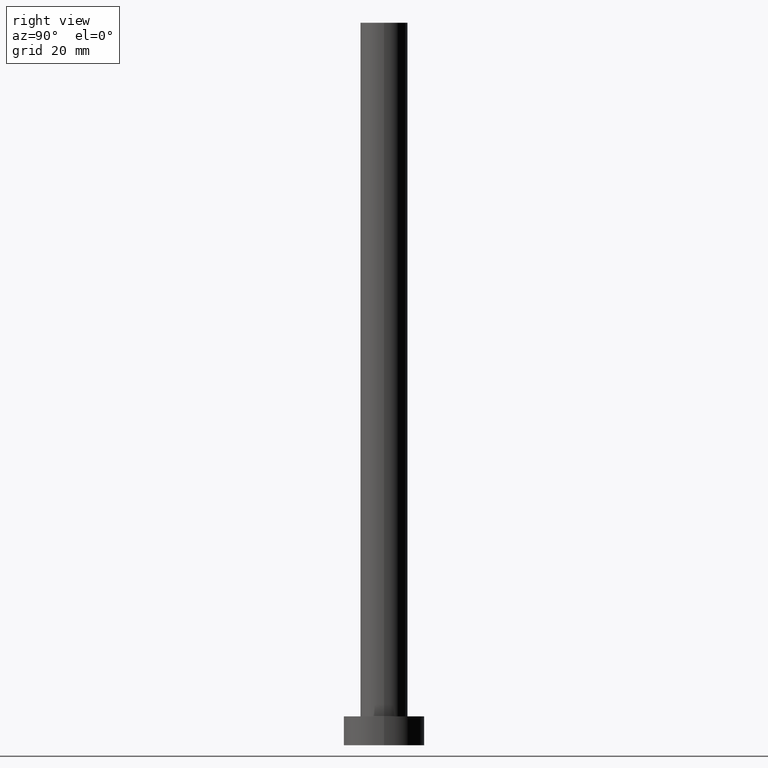
[diagram: clean part render]
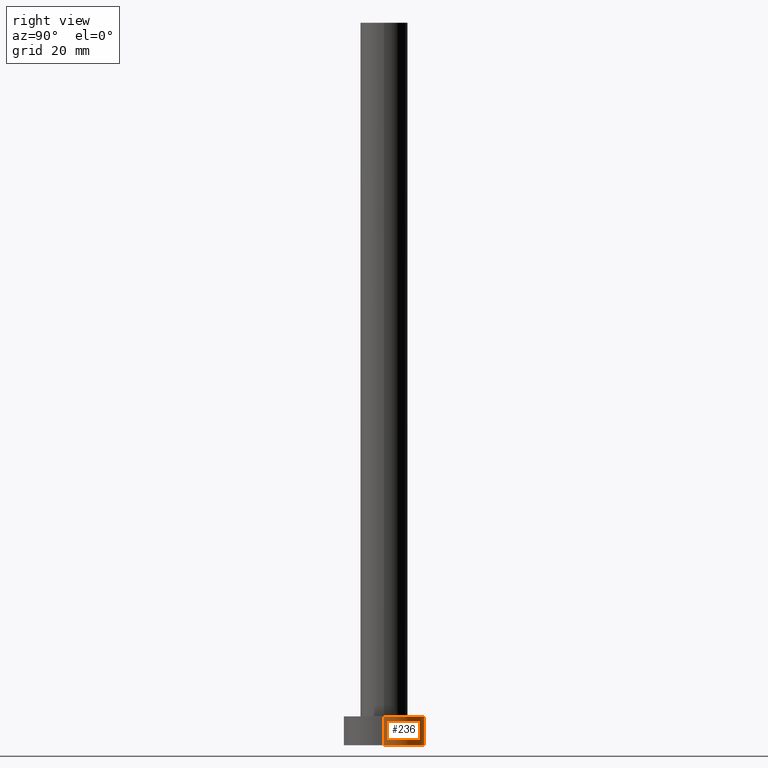
[diagram: same view with one face highlighted and labeled with its STEP entity id]
A machine part, right view. The second image highlights one B-rep face of the part: STEP entity #236.
In plain terms, the highlighted cylindrical surface (partial cylindrical patch) has radius 7 mm, axis along (-0, -0, -1).
Its self-contained STEP definition (entity closure, byte-faithful):
#8 = DIRECTION ( 'NONE',  ( 1.000000000000000000, 0.000000000000000000, 0.000000000000000000 ) ) ;
#14 = CARTESIAN_POINT ( 'NONE',  ( 0.000000000000000000, 0.000000000000000000, 5.000000000000000000 ) ) ;
#25 = CARTESIAN_POINT ( 'NONE',  ( 0.000000000000000000, 0.000000000000000000, 5.000000000000000000 ) ) ;
#27 = CARTESIAN_POINT ( 'NONE',  ( 0.000000000000000000, 0.000000000000000000, 0.000000000000000000 ) ) ;
#29 = AXIS2_PLACEMENT_3D ( 'NONE', #27, #100, #8 ) ;
#47 = EDGE_LOOP ( 'NONE', ( #241, #218, #137, #65 ) ) ;
#49 = CARTESIAN_POINT ( 'NONE',  ( 7.000000000000000000, 8.572527594031473190E-16, 0.000000000000000000 ) ) ;
#52 = EDGE_CURVE ( 'NONE', #254, #61, #120, .T. ) ;
#61 = VERTEX_POINT ( 'NONE', #160 ) ;
#65 = ORIENTED_EDGE ( 'NONE', *, *, #162, .F. ) ;
#83 = LINE ( 'NONE', #253, #163 ) ;
#100 = DIRECTION ( 'NONE',  ( 0.000000000000000000, 0.000000000000000000, 1.000000000000000000 ) ) ;
#103 = CYLINDRICAL_SURFACE ( 'NONE', #208, 7.000000000000000000 ) ;
#104 = VERTEX_POINT ( 'NONE', #204 ) ;
#110 = DIRECTION ( 'NONE',  ( -0.000000000000000000, -0.000000000000000000, -1.000000000000000000 ) ) ;
#114 = DIRECTION ( 'NONE',  ( -0.000000000000000000, -0.000000000000000000, -1.000000000000000000 ) ) ;
#115 = DIRECTION ( 'NONE',  ( -0.000000000000000000, -0.000000000000000000, -1.000000000000000000 ) ) ;
#120 = CIRCLE ( 'NONE', #168, 7.000000000000000000 ) ;
#129 = EDGE_CURVE ( 'NONE', #157, #104, #228, .T. ) ;
#133 = LINE ( 'NONE', #225, #215 ) ;
#135 = CARTESIAN_POINT ( 'NONE',  ( 7.000000000000000000, 8.572527594031473190E-16, 5.000000000000000000 ) ) ;
#137 = ORIENTED_EDGE ( 'NONE', *, *, #129, .T. ) ;
#139 = DIRECTION ( 'NONE',  ( 1.000000000000000000, 0.000000000000000000, 0.000000000000000000 ) ) ;
#157 = VERTEX_POINT ( 'NONE', #49 ) ;
#160 = CARTESIAN_POINT ( 'NONE',  ( -7.000000000000000000, 0.000000000000000000, 5.000000000000000000 ) ) ;
#162 = EDGE_CURVE ( 'NONE', #61, #104, #133, .T. ) ;
#163 = VECTOR ( 'NONE', #115, 1000.000000000000000 ) ;
#168 = AXIS2_PLACEMENT_3D ( 'NONE', #25, #217, #139 ) ;
#201 = DIRECTION ( 'NONE',  ( -1.000000000000000000, 0.000000000000000000, 0.000000000000000000 ) ) ;
#204 = CARTESIAN_POINT ( 'NONE',  ( -7.000000000000000000, 0.000000000000000000, 0.000000000000000000 ) ) ;
#208 = AXIS2_PLACEMENT_3D ( 'NONE', #14, #110, #201 ) ;
#215 = VECTOR ( 'NONE', #114, 1000.000000000000000 ) ;
#217 = DIRECTION ( 'NONE',  ( 0.000000000000000000, 0.000000000000000000, 1.000000000000000000 ) ) ;
#218 = ORIENTED_EDGE ( 'NONE', *, *, #242, .T. ) ;
#220 = FACE_OUTER_BOUND ( 'NONE', #47, .T. ) ;
#225 = CARTESIAN_POINT ( 'NONE',  ( -7.000000000000000000, 0.000000000000000000, 5.000000000000000000 ) ) ;
#228 = CIRCLE ( 'NONE', #29, 7.000000000000000000 ) ;
#236 = ADVANCED_FACE ( 'NONE', ( #220 ), #103, .T. ) ;
#241 = ORIENTED_EDGE ( 'NONE', *, *, #52, .F. ) ;
#242 = EDGE_CURVE ( 'NONE', #254, #157, #83, .T. ) ;
#253 = CARTESIAN_POINT ( 'NONE',  ( 7.000000000000000000, 8.572527594031473190E-16, 5.000000000000000000 ) ) ;
#254 = VERTEX_POINT ( 'NONE', #135 ) ;